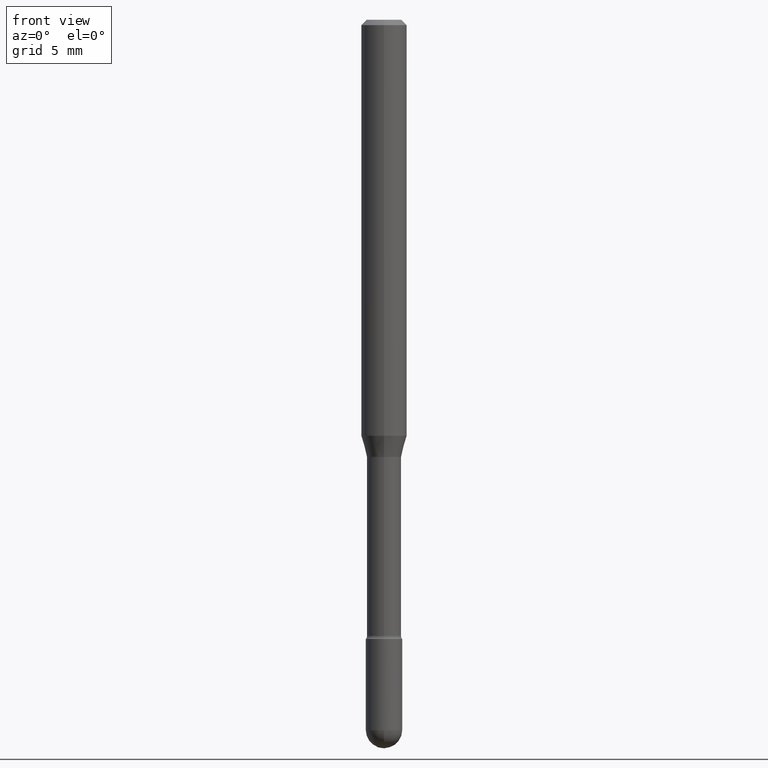
[diagram: clean part render]
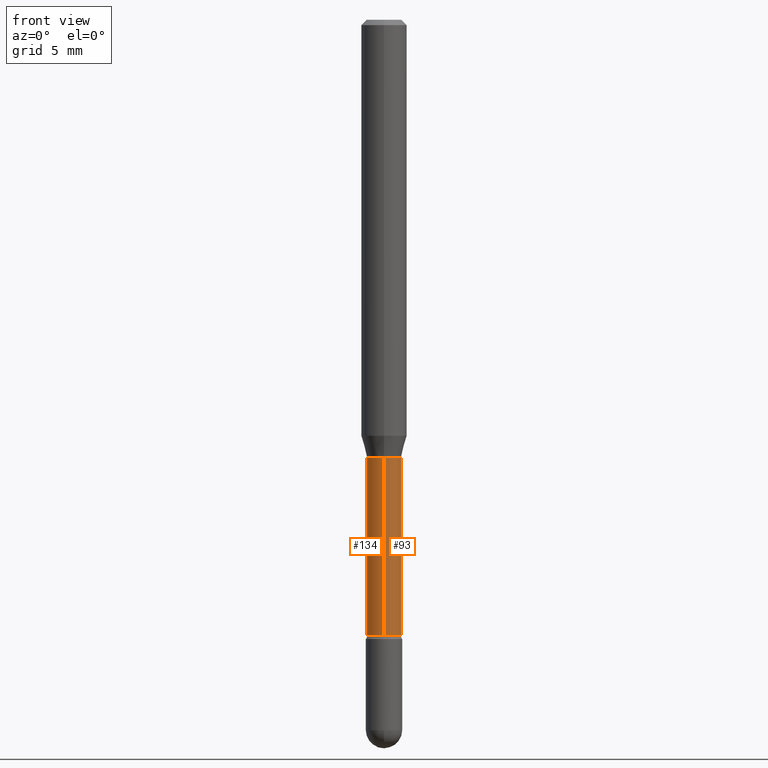
[diagram: same view with one multi-face feature highlighted, each face labeled with its STEP entity id]
A machine part, front view. The highlighted faces form ONE feature: a constant-radius fillet chain: 2 tangent blend faces with common blend radius 1.1938 mm. The faces share edges in the B-rep.
Their STEP definitions:
[1] entity #93 (Cylinder):
#3 = AXIS2_PLACEMENT_3D ( 'NONE', #305, #423, #33 ) ;
#7 = EDGE_CURVE ( 'NONE', #490, #357, #260, .T. ) ;
#20 = ORIENTED_EDGE ( 'NONE', *, *, #284, .F. ) ;
#21 = CARTESIAN_POINT ( 'NONE',  ( -3.281992458512251188E-16, -0.04700000000000420508, -1.201974787463810479 ) ) ;
#33 = DIRECTION ( 'NONE',  ( -6.982962677686265922E-15, -1.000000000000000000, 3.491631476579075526E-15 ) ) ;
#41 = CARTESIAN_POINT ( 'NONE',  ( -3.281992458512137296E-16, -0.04700000000000599532, -1.690999999999999837 ) ) ;
#58 = EDGE_CURVE ( 'NONE', #490, #553, #267, .T. ) ;
#63 = ORIENTED_EDGE ( 'NONE', *, *, #58, .T. ) ;
#73 = VECTOR ( 'NONE', #186, 39.37007874015748143 ) ;
#93 = ADVANCED_FACE ( 'NONE', ( #335 ), #254, .T. ) ;
#122 = CARTESIAN_POINT ( 'NONE',  ( 3.339550858072887499E-16, 0.04699999999999580208, -1.201974787463810701 ) ) ;
#151 = ORIENTED_EDGE ( 'NONE', *, *, #306, .T. ) ;
#186 = DIRECTION ( 'NONE',  ( -2.445363965564486438E-29, 3.491631476579074343E-15, 1.000000000000000000 ) ) ;
#231 = DIRECTION ( 'NONE',  ( -2.445363965564486438E-29, 3.491631476579074343E-15, 1.000000000000000000 ) ) ;
#246 = EDGE_LOOP ( 'NONE', ( #63, #151, #20, #327 ) ) ;
#254 = CYLINDRICAL_SURFACE ( 'NONE', #3, 0.04700000000000004868 ) ;
#258 = CARTESIAN_POINT ( 'NONE',  ( -3.281992458512548490E-16, -0.04700000000000004868, 6.421800782904627861E-16 ) ) ;
#260 = LINE ( 'NONE', #258, #503 ) ;
#267 = CIRCLE ( 'NONE', #413, 0.04700000000000009032 ) ;
#284 = EDGE_CURVE ( 'NONE', #357, #520, #425, .T. ) ;
#305 = CARTESIAN_POINT ( 'NONE',  ( -1.169113584055446105E-44, 1.669184350826100908E-30, 4.780733988912460139E-16 ) ) ;
#306 = EDGE_CURVE ( 'NONE', #553, #520, #316, .T. ) ;
#310 = CARTESIAN_POINT ( 'NONE',  ( 2.939265832781034227E-29, -4.196853001963084111E-15, -1.201974787463810479 ) ) ;
#316 = LINE ( 'NONE', #483, #73 ) ;
#327 = ORIENTED_EDGE ( 'NONE', *, *, #7, .F. ) ;
#335 = FACE_OUTER_BOUND ( 'NONE', #246, .T. ) ;
#344 = DIRECTION ( 'NONE',  ( -2.445363965564486438E-29, 3.491631476579074343E-15, 1.000000000000000000 ) ) ;
#350 = DIRECTION ( 'NONE',  ( -6.982962677686265922E-15, -1.000000000000000000, 2.906221269855598900E-15 ) ) ;
#357 = VERTEX_POINT ( 'NONE', #21 ) ;
#376 = DIRECTION ( 'NONE',  ( -6.982962677686265133E-15, -1.000000000000000000, 5.812442539711187545E-15 ) ) ;
#382 = DIRECTION ( 'NONE',  ( -2.445363965564486438E-29, 3.491631476579074343E-15, 1.000000000000000000 ) ) ;
#413 = AXIS2_PLACEMENT_3D ( 'NONE', #429, #344, #376 ) ;
#423 = DIRECTION ( 'NONE',  ( -2.445363965564486438E-29, 3.491631476579074343E-15, 1.000000000000000000 ) ) ;
#425 = CIRCLE ( 'NONE', #439, 0.04700000000000000705 ) ;
#429 = CARTESIAN_POINT ( 'NONE',  ( 4.135110465769546823E-29, -5.904348826895214660E-15, -1.691000000000000059 ) ) ;
#439 = AXIS2_PLACEMENT_3D ( 'NONE', #310, #231, #350 ) ;
#477 = CARTESIAN_POINT ( 'NONE',  ( 3.446132268436902621E-16, 0.04699999999999417838, -1.691000000000000281 ) ) ;
#483 = CARTESIAN_POINT ( 'NONE',  ( 3.339550858072473347E-16, 0.04700000000000004868, 3.139667194920293897E-16 ) ) ;
#490 = VERTEX_POINT ( 'NONE', #41 ) ;
#503 = VECTOR ( 'NONE', #382, 39.37007874015748143 ) ;
#520 = VERTEX_POINT ( 'NONE', #122 ) ;
#553 = VERTEX_POINT ( 'NONE', #477 ) ;
[2] entity #134 (Cylinder):
#7 = EDGE_CURVE ( 'NONE', #490, #357, #260, .T. ) ;
#21 = CARTESIAN_POINT ( 'NONE',  ( -3.281992458512251188E-16, -0.04700000000000420508, -1.201974787463810479 ) ) ;
#38 = DIRECTION ( 'NONE',  ( -6.982962677686265922E-15, -1.000000000000000000, 3.491631476579075526E-15 ) ) ;
#41 = CARTESIAN_POINT ( 'NONE',  ( -3.281992458512137296E-16, -0.04700000000000599532, -1.690999999999999837 ) ) ;
#73 = VECTOR ( 'NONE', #186, 39.37007874015748143 ) ;
#78 = DIRECTION ( 'NONE',  ( -6.982962677686265133E-15, -1.000000000000000000, 5.812442539711187545E-15 ) ) ;
#80 = EDGE_CURVE ( 'NONE', #553, #490, #383, .T. ) ;
#122 = CARTESIAN_POINT ( 'NONE',  ( 3.339550858072887499E-16, 0.04699999999999580208, -1.201974787463810701 ) ) ;
#123 = DIRECTION ( 'NONE',  ( -2.445363965564486438E-29, 3.491631476579074343E-15, 1.000000000000000000 ) ) ;
#127 = FACE_OUTER_BOUND ( 'NONE', #275, .T. ) ;
#134 = ADVANCED_FACE ( 'NONE', ( #127 ), #468, .T. ) ;
#163 = ORIENTED_EDGE ( 'NONE', *, *, #80, .T. ) ;
#186 = DIRECTION ( 'NONE',  ( -2.445363965564486438E-29, 3.491631476579074343E-15, 1.000000000000000000 ) ) ;
#217 = CARTESIAN_POINT ( 'NONE',  ( 4.135110465769546823E-29, -5.904348826895214660E-15, -1.691000000000000059 ) ) ;
#218 = ORIENTED_EDGE ( 'NONE', *, *, #7, .T. ) ;
#249 = CARTESIAN_POINT ( 'NONE',  ( 2.939265832781034227E-29, -4.196853001963084111E-15, -1.201974787463810479 ) ) ;
#252 = ORIENTED_EDGE ( 'NONE', *, *, #389, .F. ) ;
#257 = CARTESIAN_POINT ( 'NONE',  ( -1.169113584055446105E-44, 1.669184350826100908E-30, 4.780733988912460139E-16 ) ) ;
#258 = CARTESIAN_POINT ( 'NONE',  ( -3.281992458512548490E-16, -0.04700000000000004868, 6.421800782904627861E-16 ) ) ;
#260 = LINE ( 'NONE', #258, #503 ) ;
#261 = AXIS2_PLACEMENT_3D ( 'NONE', #217, #123, #78 ) ;
#275 = EDGE_LOOP ( 'NONE', ( #308, #163, #218, #252 ) ) ;
#306 = EDGE_CURVE ( 'NONE', #553, #520, #316, .T. ) ;
#308 = ORIENTED_EDGE ( 'NONE', *, *, #306, .F. ) ;
#311 = CIRCLE ( 'NONE', #363, 0.04700000000000000705 ) ;
#316 = LINE ( 'NONE', #483, #73 ) ;
#356 = DIRECTION ( 'NONE',  ( -2.445363965564486438E-29, 3.491631476579074343E-15, 1.000000000000000000 ) ) ;
#357 = VERTEX_POINT ( 'NONE', #21 ) ;
#363 = AXIS2_PLACEMENT_3D ( 'NONE', #249, #356, #548 ) ;
#382 = DIRECTION ( 'NONE',  ( -2.445363965564486438E-29, 3.491631476579074343E-15, 1.000000000000000000 ) ) ;
#383 = CIRCLE ( 'NONE', #261, 0.04700000000000009032 ) ;
#389 = EDGE_CURVE ( 'NONE', #520, #357, #311, .T. ) ;
#394 = AXIS2_PLACEMENT_3D ( 'NONE', #257, #426, #38 ) ;
#426 = DIRECTION ( 'NONE',  ( -2.445363965564486438E-29, 3.491631476579074343E-15, 1.000000000000000000 ) ) ;
#468 = CYLINDRICAL_SURFACE ( 'NONE', #394, 0.04700000000000004868 ) ;
#477 = CARTESIAN_POINT ( 'NONE',  ( 3.446132268436902621E-16, 0.04699999999999417838, -1.691000000000000281 ) ) ;
#483 = CARTESIAN_POINT ( 'NONE',  ( 3.339550858072473347E-16, 0.04700000000000004868, 3.139667194920293897E-16 ) ) ;
#490 = VERTEX_POINT ( 'NONE', #41 ) ;
#503 = VECTOR ( 'NONE', #382, 39.37007874015748143 ) ;
#520 = VERTEX_POINT ( 'NONE', #122 ) ;
#548 = DIRECTION ( 'NONE',  ( -6.982962677686265922E-15, -1.000000000000000000, 2.906221269855598900E-15 ) ) ;
#553 = VERTEX_POINT ( 'NONE', #477 ) ;